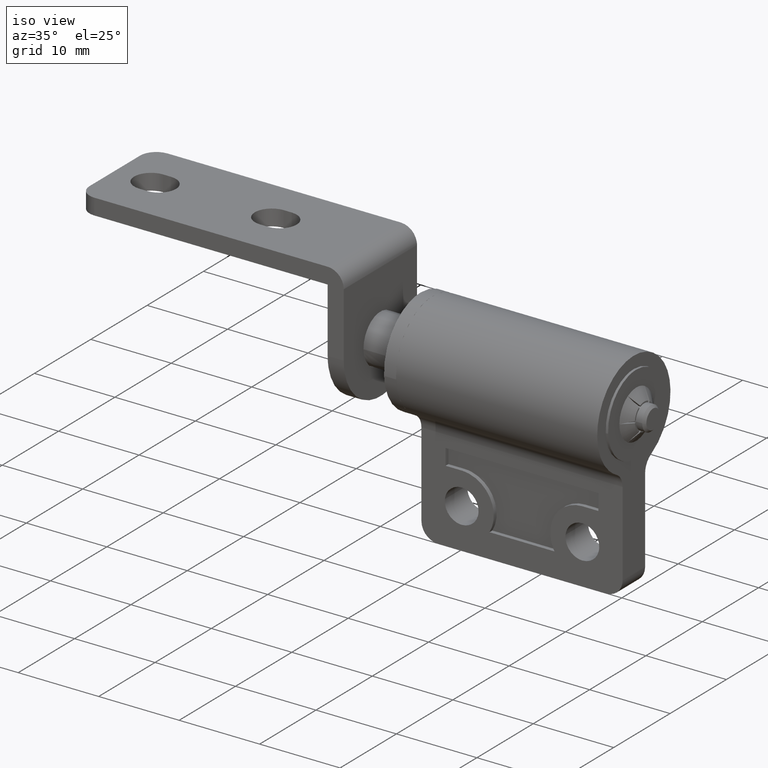
[diagram: clean part render]
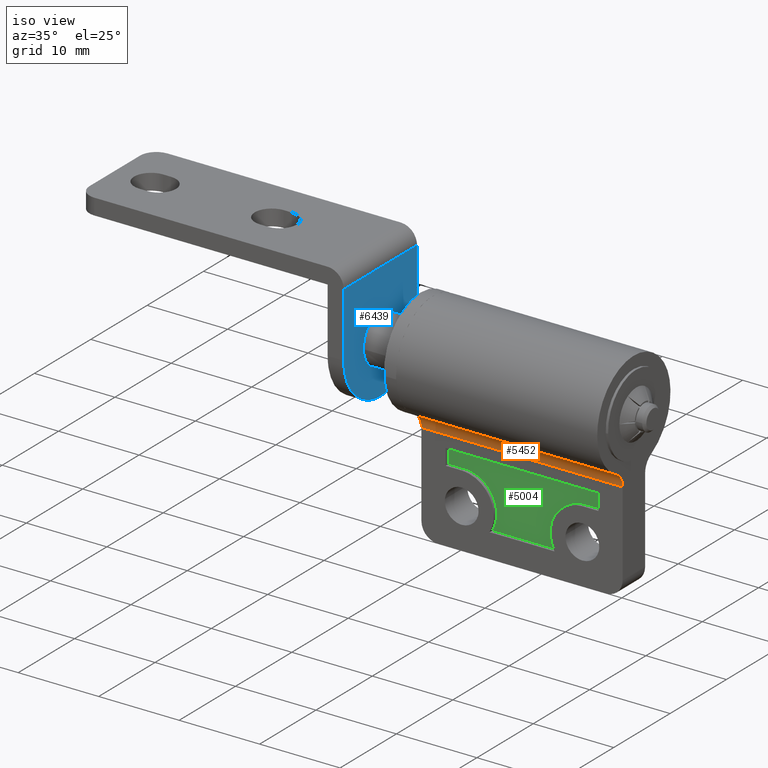
[diagram: same view with three faces highlighted in distinct colors, each labeled with its STEP entity id]
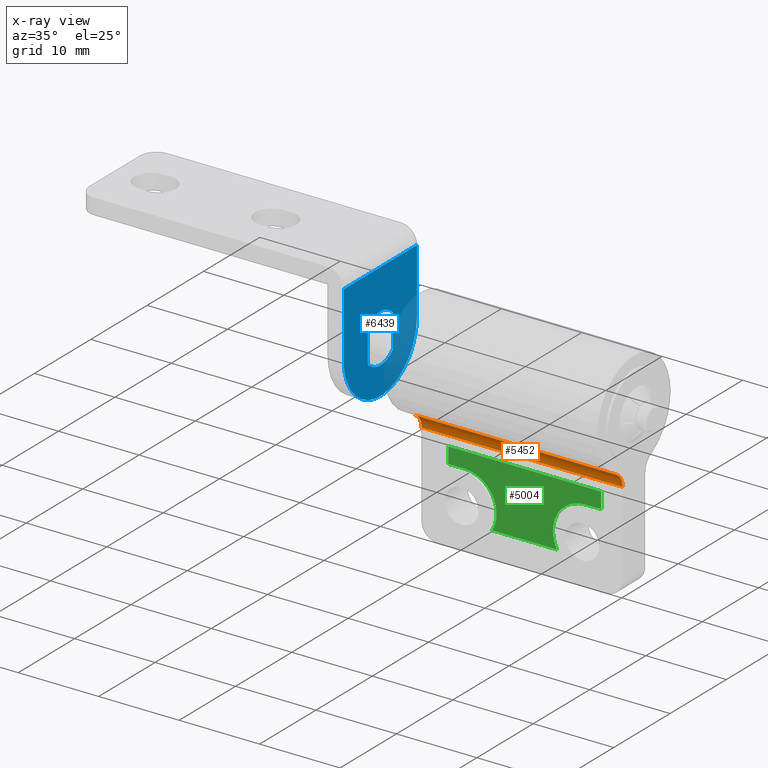
[diagram: x-ray of the same camera — body ghosted, the three highlighted faces saturated]
A machine part, iso view with three faces highlighted in distinct colors.
The next image is the same camera in x-ray (body ghosted, the three faces saturated) — at least one of them is partly hidden behind the body in this view.
Their STEP definitions:

[orange] entity #5452 — the highlighted face is a freeform B-spline surface patch.
#5224=CARTESIAN_POINT('',(31.500000000000000,-2.0,-7.500000000000000));
#5225=VERTEX_POINT('',#5224);
#5254=CARTESIAN_POINT('',(31.500000000000000,-3.058823527436040,-5.735294118700780));
#5255=VERTEX_POINT('',#5254);
#5275=CARTESIAN_POINT('',(31.500000000000000,-2.0,-7.500000000000000));
#5276=CARTESIAN_POINT('',(31.499999999999996,-2.000000000000000,-6.300000001522625));
#5277=CARTESIAN_POINT('',(31.500000000000000,-3.058823527436039,-5.735294118700779));
#5285=(BOUNDED_CURVE()B_SPLINE_CURVE(2,(#5275,#5276,#5277),.UNSPECIFIED.,.F.,.U.)CURVE()GEOMETRIC_REPRESENTATION_ITEM()QUASI_UNIFORM_CURVE()RATIONAL_B_SPLINE_CURVE((1.0,0.857492926000553,1.0))REPRESENTATION_ITEM(''));
#5286=EDGE_CURVE('',#5225,#5255,#5285,.T.);
#5310=CARTESIAN_POINT('',(6.500000000000000,-2.0,-7.500000000000000));
#5311=VERTEX_POINT('',#5310);
#5317=CARTESIAN_POINT('',(6.500000000000000,-3.058823527436040,-5.735294118700780));
#5318=VERTEX_POINT('',#5317);
#5319=CARTESIAN_POINT('',(6.500000000000000,-2.0,-7.500000000000000));
#5320=CARTESIAN_POINT('',(6.500000000000000,-2.000000000000000,-6.300000001522625));
#5321=CARTESIAN_POINT('',(6.500000000000000,-3.058823527436039,-5.735294118700779));
#5329=(BOUNDED_CURVE()B_SPLINE_CURVE(2,(#5319,#5320,#5321),.UNSPECIFIED.,.F.,.U.)CURVE()GEOMETRIC_REPRESENTATION_ITEM()QUASI_UNIFORM_CURVE()RATIONAL_B_SPLINE_CURVE((1.0,0.857492926000553,1.0))REPRESENTATION_ITEM(''));
#5330=EDGE_CURVE('',#5311,#5318,#5329,.T.);
#5424=CARTESIAN_POINT('',(5.874999999999998,-3.107604373780384,-5.710131276795950));
#5425=CARTESIAN_POINT('',(32.140625000000000,-3.107604373780384,-5.710131276795950));
#5426=CARTESIAN_POINT('',(5.874999999999998,-1.935341035214061,-6.294600217200431));
#5427=CARTESIAN_POINT('',(32.140625000000000,-1.935341035214061,-6.294600217200431));
#5428=CARTESIAN_POINT('',(5.874999999999998,-2.002641529094197,-7.602757669790785));
#5429=CARTESIAN_POINT('',(32.140625000000000,-2.002641529094197,-7.602757669790785));
#5437=(BOUNDED_SURFACE()B_SPLINE_SURFACE(1,2,((#5424,#5426,#5428),(#5425,#5427,#5429)),.UNSPECIFIED.,.F.,.F.,.U.)B_SPLINE_SURFACE_WITH_KNOTS((2,2),(3,3),(0.0,26.265625000000000),(0.0,2.386606739064272),.UNSPECIFIED.)GEOMETRIC_REPRESENTATION_ITEM()RATIONAL_B_SPLINE_SURFACE(((1.0,0.833169199101226,0.991936443860608),(1.0,0.833169199101226,0.991936443860608)))REPRESENTATION_ITEM('')SURFACE());
#5438=ORIENTED_EDGE('',*,*,#5286,.T.);
#5439=CARTESIAN_POINT('',(6.500000000000000,-3.058823527436040,-5.735294118700780));
#5440=CARTESIAN_POINT('',(31.500000000000000,-3.058823527436040,-5.735294118700780));
#5441=QUASI_UNIFORM_CURVE('',1,(#5439,#5440),.UNSPECIFIED.,.F.,.U.);
#5442=EDGE_CURVE('',#5318,#5255,#5441,.T.);
#5443=ORIENTED_EDGE('',*,*,#5442,.F.);
#5444=ORIENTED_EDGE('',*,*,#5330,.F.);
#5445=CARTESIAN_POINT('',(6.500000000000000,-2.0,-7.500000000000000));
#5446=CARTESIAN_POINT('',(31.500000000000000,-2.0,-7.500000000000000));
#5447=QUASI_UNIFORM_CURVE('',1,(#5445,#5446),.UNSPECIFIED.,.F.,.U.);
#5448=EDGE_CURVE('',#5311,#5225,#5447,.T.);
#5449=ORIENTED_EDGE('',*,*,#5448,.T.);
#5450=EDGE_LOOP('',(#5438,#5443,#5444,#5449));
#5451=FACE_OUTER_BOUND('',#5450,.T.);
#5452=ADVANCED_FACE('',(#5451),#5437,.F.);

[blue] entity #6439 — the highlighted face is a freeform B-spline surface patch.
#5609=CARTESIAN_POINT('',(0.0,-6.500000000000000,8.0));
#5610=VERTEX_POINT('',#5609);
#5626=CARTESIAN_POINT('',(0.0,6.500000000000000,8.0));
#5627=VERTEX_POINT('',#5626);
#5628=CARTESIAN_POINT('',(0.0,6.500000000000000,8.0));
#5629=CARTESIAN_POINT('',(0.0,-6.500000000000000,8.0));
#5630=QUASI_UNIFORM_CURVE('',1,(#5628,#5629),.UNSPECIFIED.,.F.,.U.);
#5631=EDGE_CURVE('',#5627,#5610,#5630,.T.);
#5792=CARTESIAN_POINT('',(0.0,-2.225000000000000,2.049390153191810));
#5793=VERTEX_POINT('',#5792);
#5799=CARTESIAN_POINT('',(0.0,-2.225000000000000,-2.049390153191900));
#5800=VERTEX_POINT('',#5799);
#5801=CARTESIAN_POINT('',(0.0,-2.225000000000000,-2.049390153191900));
#5802=CARTESIAN_POINT('',(0.0,-2.225000000000000,2.049390153191810));
#5803=QUASI_UNIFORM_CURVE('',1,(#5801,#5802),.UNSPECIFIED.,.F.,.U.);
#5804=EDGE_CURVE('',#5800,#5793,#5803,.T.);
#5846=CARTESIAN_POINT('',(0.0,2.225000000000000,-2.049390153191895));
#5847=VERTEX_POINT('',#5846);
#5848=CARTESIAN_POINT('',(0.0,2.225000000000000,-2.049390153191895));
#5849=CARTESIAN_POINT('',(0.0,1.326390915323356,-3.025000000000000));
#5850=CARTESIAN_POINT('',(0.0,0.0,-3.025000000000000));
#5851=CARTESIAN_POINT('',(0.0,-1.326390915323354,-3.025000000000000));
#5852=CARTESIAN_POINT('',(0.0,-2.225000000000000,-2.049390153191900));
#5860=(BOUNDED_CURVE()B_SPLINE_CURVE(2,(#5848,#5849,#5850,#5851,#5852),.UNSPECIFIED.,.F.,.U.)B_SPLINE_CURVE_WITH_KNOTS((3,2,3),(0.0,0.500000000000000,1.0),.UNSPECIFIED.)CURVE()GEOMETRIC_REPRESENTATION_ITEM()RATIONAL_B_SPLINE_CURVE((1.0,0.915828681621899,1.0,0.915828681621899,1.0))REPRESENTATION_ITEM(''));
#5861=EDGE_CURVE('',#5847,#5800,#5860,.T.);
#5884=CARTESIAN_POINT('',(0.0,2.225000000000000,2.049390153191810));
#5885=VERTEX_POINT('',#5884);
#5886=CARTESIAN_POINT('',(0.0,2.225000000000000,2.049390153191810));
#5887=CARTESIAN_POINT('',(0.0,2.225000000000000,-2.049390153191895));
#5888=QUASI_UNIFORM_CURVE('',1,(#5886,#5887),.UNSPECIFIED.,.F.,.U.);
#5889=EDGE_CURVE('',#5885,#5847,#5888,.T.);
#5929=CARTESIAN_POINT('',(0.0,-2.225000000000000,2.049390153191810));
#5930=CARTESIAN_POINT('',(0.0,-1.326390915323394,3.025000000000000));
#5931=CARTESIAN_POINT('',(0.0,0.0,3.025000000000000));
#5932=CARTESIAN_POINT('',(0.0,1.326390915323393,3.025000000000000));
#5933=CARTESIAN_POINT('',(0.0,2.225000000000000,2.049390153191810));
#5941=(BOUNDED_CURVE()B_SPLINE_CURVE(2,(#5929,#5930,#5931,#5932,#5933),.UNSPECIFIED.,.F.,.U.)B_SPLINE_CURVE_WITH_KNOTS((3,2,3),(0.0,0.500000000000000,1.0),.UNSPECIFIED.)CURVE()GEOMETRIC_REPRESENTATION_ITEM()RATIONAL_B_SPLINE_CURVE((1.0,0.915828681621896,1.0,0.915828681621896,1.0))REPRESENTATION_ITEM(''));
#5942=EDGE_CURVE('',#5793,#5885,#5941,.T.);
#6396=CARTESIAN_POINT('',(0.0,7.149349974803477,8.724274971896181));
#6397=CARTESIAN_POINT('',(0.0,-7.149350323490650,8.724274971896181));
#6398=CARTESIAN_POINT('',(0.0,7.149349974803477,-7.224275360816410));
#6399=CARTESIAN_POINT('',(0.0,-7.149350323490650,-7.224275360816410));
#6400=B_SPLINE_SURFACE_WITH_KNOTS('',1,1,((#6396,#6398),(#6397,#6399)),.UNSPECIFIED.,.F.,.F.,.U.,(2,2),(2,2),(0.0,14.298700298294129),(0.0,15.948550332712591),.UNSPECIFIED.);
#6401=CARTESIAN_POINT('',(0.0,6.500000000000000,-1.193991E-015));
#6402=VERTEX_POINT('',#6401);
#6403=CARTESIAN_POINT('',(0.0,6.500000000000000,8.0));
#6404=CARTESIAN_POINT('',(0.0,6.500000000000000,-1.193991E-015));
#6405=QUASI_UNIFORM_CURVE('',1,(#6403,#6404),.UNSPECIFIED.,.F.,.U.);
#6406=EDGE_CURVE('',#5627,#6402,#6405,.T.);
#6407=ORIENTED_EDGE('',*,*,#6406,.F.);
#6408=ORIENTED_EDGE('',*,*,#5631,.T.);
#6409=CARTESIAN_POINT('',(0.0,-6.500000000000000,1.193991E-015));
#6410=VERTEX_POINT('',#6409);
#6411=CARTESIAN_POINT('',(0.0,-6.500000000000000,1.193991E-015));
#6412=CARTESIAN_POINT('',(0.0,-6.500000000000000,8.0));
#6413=QUASI_UNIFORM_CURVE('',1,(#6411,#6412),.UNSPECIFIED.,.F.,.U.);
#6414=EDGE_CURVE('',#6410,#5610,#6413,.T.);
#6415=ORIENTED_EDGE('',*,*,#6414,.F.);
#6416=CARTESIAN_POINT('',(0.0,6.500000000000000,0.0));
#6417=CARTESIAN_POINT('',(0.0,6.500000000000000,-6.500000000000000));
#6418=CARTESIAN_POINT('',(0.0,0.0,-6.500000000000000));
#6419=CARTESIAN_POINT('',(0.0,-6.500000000000000,-6.500000000000000));
#6420=CARTESIAN_POINT('',(0.0,-6.500000000000000,0.0));
#6428=(BOUNDED_CURVE()B_SPLINE_CURVE(2,(#6416,#6417,#6418,#6419,#6420),.UNSPECIFIED.,.F.,.U.)B_SPLINE_CURVE_WITH_KNOTS((3,2,3),(0.0,0.500000000000000,1.0),.UNSPECIFIED.)CURVE()GEOMETRIC_REPRESENTATION_ITEM()RATIONAL_B_SPLINE_CURVE((1.0,0.707106781186547,1.0,0.707106781186547,1.0))REPRESENTATION_ITEM(''));
#6429=EDGE_CURVE('',#6402,#6410,#6428,.T.);
#6430=ORIENTED_EDGE('',*,*,#6429,.F.);
#6431=EDGE_LOOP('',(#6407,#6408,#6415,#6430));
#6432=FACE_OUTER_BOUND('',#6431,.T.);
#6433=ORIENTED_EDGE('',*,*,#5804,.T.);
#6434=ORIENTED_EDGE('',*,*,#5942,.T.);
#6435=ORIENTED_EDGE('',*,*,#5889,.T.);
#6436=ORIENTED_EDGE('',*,*,#5861,.T.);
#6437=EDGE_LOOP('',(#6433,#6434,#6435,#6436));
#6438=FACE_BOUND('',#6437,.T.);
#6439=ADVANCED_FACE('',(#6432,#6438),#6400,.T.);

[green] entity #5004 — the highlighted face is a freeform B-spline surface patch.
#4921=CARTESIAN_POINT('',(8.550950036825686,-1.500000000000000,-8.600400015505551));
#4922=CARTESIAN_POINT('',(29.449050472794031,-1.500000000000000,-8.600400015505551));
#4923=CARTESIAN_POINT('',(8.550950036825686,-1.500000000000000,-17.399600199071170));
#4924=CARTESIAN_POINT('',(29.449050472794031,-1.500000000000000,-17.399600199071170));
#4925=B_SPLINE_SURFACE_WITH_KNOTS('',1,1,((#4921,#4923),(#4922,#4924)),.UNSPECIFIED.,.F.,.F.,.U.,(2,2),(2,2),(0.0,20.898100435968342),(0.0,8.799200183565619),.UNSPECIFIED.);
#4926=CARTESIAN_POINT('',(14.964100999999999,-1.499999999999946,-17.0));
#4927=VERTEX_POINT('',#4926);
#4928=CARTESIAN_POINT('',(11.500000000000000,-1.499999999999946,-11.0));
#4929=VERTEX_POINT('',#4928);
#4930=CARTESIAN_POINT('',(14.964100999999999,-1.499999999999946,-17.0));
#4931=CARTESIAN_POINT('',(16.118802204778483,-1.499999999999946,-15.000000266362507));
#4932=CARTESIAN_POINT('',(14.964101692029979,-1.499999999999946,-13.000000133181249));
#4933=CARTESIAN_POINT('',(13.809401179281481,-1.499999999999946,-11.0));
#4934=CARTESIAN_POINT('',(11.500000000000000,-1.499999999999946,-11.0));
#4942=(BOUNDED_CURVE()B_SPLINE_CURVE(2,(#4930,#4931,#4932,#4933,#4934),.UNSPECIFIED.,.F.,.U.)B_SPLINE_CURVE_WITH_KNOTS((3,2,3),(0.0,0.500000000000000,1.0),.UNSPECIFIED.)CURVE()GEOMETRIC_REPRESENTATION_ITEM()RATIONAL_B_SPLINE_CURVE((1.0,0.866025394172910,1.0,0.866025394172910,1.0))REPRESENTATION_ITEM(''));
#4943=EDGE_CURVE('',#4927,#4929,#4942,.T.);
#4944=ORIENTED_EDGE('',*,*,#4943,.F.);
#4945=CARTESIAN_POINT('',(23.035898384862151,-1.499999999999946,-17.0));
#4946=VERTEX_POINT('',#4945);
#4947=CARTESIAN_POINT('',(23.035898384862151,-1.499999999999946,-17.0));
#4948=CARTESIAN_POINT('',(14.964100999999999,-1.499999999999946,-17.0));
#4949=QUASI_UNIFORM_CURVE('',1,(#4947,#4948),.UNSPECIFIED.,.F.,.U.);
#4950=EDGE_CURVE('',#4946,#4927,#4949,.T.);
#4951=ORIENTED_EDGE('',*,*,#4950,.F.);
#4952=CARTESIAN_POINT('',(26.500000000000000,-1.499999999999946,-11.0));
#4953=VERTEX_POINT('',#4952);
#4954=CARTESIAN_POINT('',(26.500000000000000,-1.499999999999946,-11.0));
#4955=CARTESIAN_POINT('',(24.190598923241510,-1.499999999999946,-11.0));
#4956=CARTESIAN_POINT('',(23.035898384862261,-1.499999999999946,-12.999999999999980));
#4957=CARTESIAN_POINT('',(21.881197846482998,-1.499999999999946,-14.999999999999964));
#4958=CARTESIAN_POINT('',(23.035898384862151,-1.499999999999946,-17.0));
#4966=(BOUNDED_CURVE()B_SPLINE_CURVE(2,(#4954,#4955,#4956,#4957,#4958),.UNSPECIFIED.,.F.,.U.)B_SPLINE_CURVE_WITH_KNOTS((3,2,3),(0.0,0.500000000000000,1.0),.UNSPECIFIED.)CURVE()GEOMETRIC_REPRESENTATION_ITEM()RATIONAL_B_SPLINE_CURVE((1.0,0.866025403784440,1.0,0.866025403784440,1.0))REPRESENTATION_ITEM(''));
#4967=EDGE_CURVE('',#4953,#4946,#4966,.T.);
#4968=ORIENTED_EDGE('',*,*,#4967,.F.);
#4969=CARTESIAN_POINT('',(28.500000000000000,-1.499999999999946,-11.0));
#4970=VERTEX_POINT('',#4969);
#4971=CARTESIAN_POINT('',(28.500000000000000,-1.499999999999946,-11.0));
#4972=CARTESIAN_POINT('',(26.500000000000000,-1.499999999999946,-11.0));
#4973=QUASI_UNIFORM_CURVE('',1,(#4971,#4972),.UNSPECIFIED.,.F.,.U.);
#4974=EDGE_CURVE('',#4970,#4953,#4973,.T.);
#4975=ORIENTED_EDGE('',*,*,#4974,.F.);
#4976=CARTESIAN_POINT('',(28.500000000000000,-1.499999999999946,-9.0));
#4977=VERTEX_POINT('',#4976);
#4978=CARTESIAN_POINT('',(28.500000000000000,-1.499999999999946,-9.0));
#4979=CARTESIAN_POINT('',(28.500000000000000,-1.499999999999946,-11.0));
#4980=QUASI_UNIFORM_CURVE('',1,(#4978,#4979),.UNSPECIFIED.,.F.,.U.);
#4981=EDGE_CURVE('',#4977,#4970,#4980,.T.);
#4982=ORIENTED_EDGE('',*,*,#4981,.F.);
#4983=CARTESIAN_POINT('',(9.500000000000000,-1.499999999999946,-9.0));
#4984=VERTEX_POINT('',#4983);
#4985=CARTESIAN_POINT('',(9.500000000000000,-1.499999999999946,-9.0));
#4986=CARTESIAN_POINT('',(28.500000000000000,-1.499999999999946,-9.0));
#4987=QUASI_UNIFORM_CURVE('',1,(#4985,#4986),.UNSPECIFIED.,.F.,.U.);
#4988=EDGE_CURVE('',#4984,#4977,#4987,.T.);
#4989=ORIENTED_EDGE('',*,*,#4988,.F.);
#4990=CARTESIAN_POINT('',(9.500000000000000,-1.499999999999946,-11.0));
#4991=VERTEX_POINT('',#4990);
#4992=CARTESIAN_POINT('',(9.500000000000000,-1.499999999999946,-11.0));
#4993=CARTESIAN_POINT('',(9.500000000000000,-1.499999999999946,-9.0));
#4994=QUASI_UNIFORM_CURVE('',1,(#4992,#4993),.UNSPECIFIED.,.F.,.U.);
#4995=EDGE_CURVE('',#4991,#4984,#4994,.T.);
#4996=ORIENTED_EDGE('',*,*,#4995,.F.);
#4997=CARTESIAN_POINT('',(11.500000000000000,-1.499999999999946,-11.0));
#4998=CARTESIAN_POINT('',(9.500000000000000,-1.499999999999946,-11.0));
#4999=QUASI_UNIFORM_CURVE('',1,(#4997,#4998),.UNSPECIFIED.,.F.,.U.);
#5000=EDGE_CURVE('',#4929,#4991,#4999,.T.);
#5001=ORIENTED_EDGE('',*,*,#5000,.F.);
#5002=EDGE_LOOP('',(#4944,#4951,#4968,#4975,#4982,#4989,#4996,#5001));
#5003=FACE_OUTER_BOUND('',#5002,.T.);
#5004=ADVANCED_FACE('',(#5003),#4925,.F.);